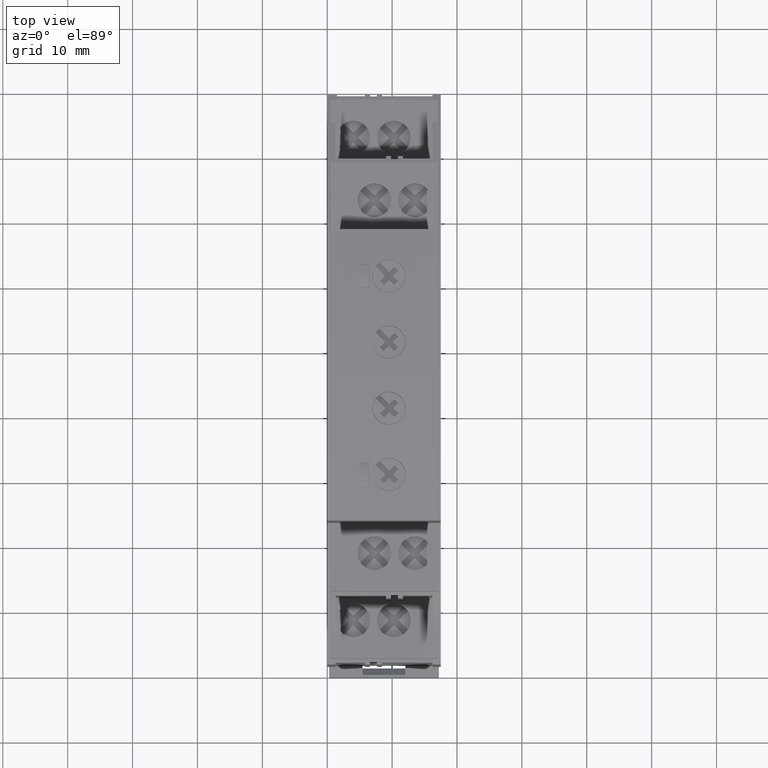
[diagram: clean part render]
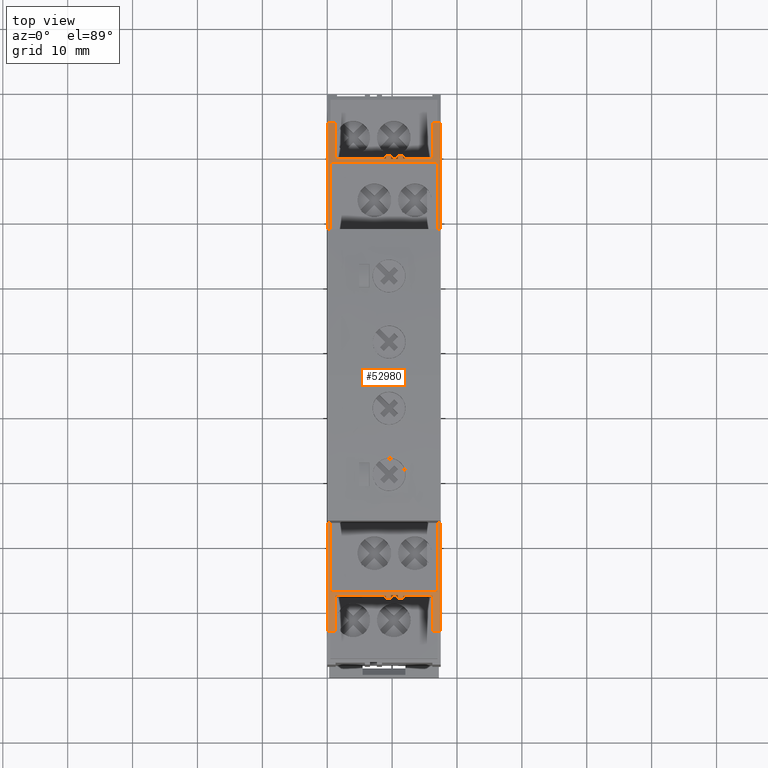
[diagram: same view with one face highlighted and labeled with its STEP entity id]
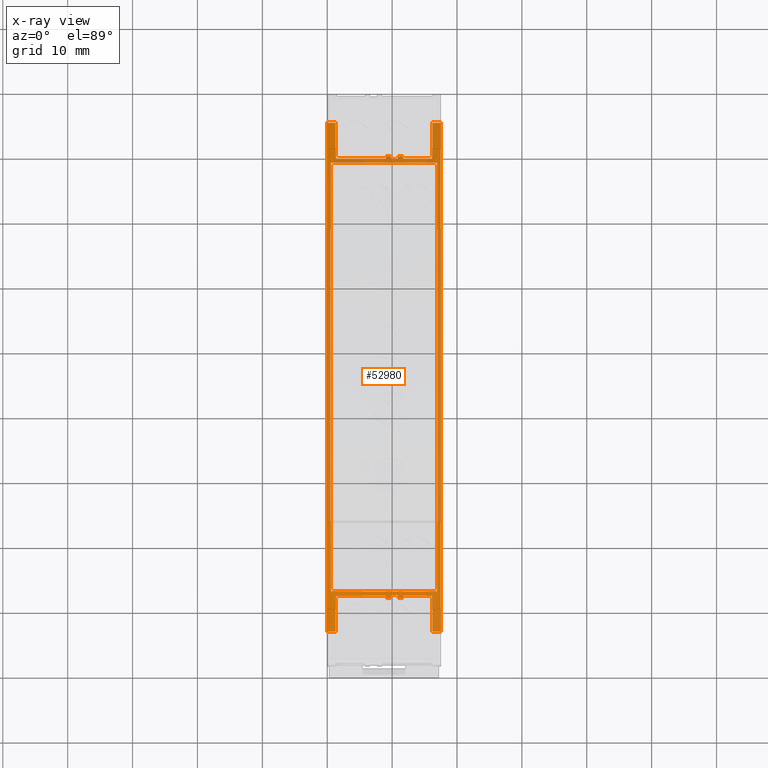
[diagram: x-ray of the same camera — body ghosted, the highlighted face saturated]
A machine part, top view. The second image highlights one B-rep face of the part: STEP entity #52980.
The next image is the same camera in x-ray: the body ghosted, the highlighted face saturated — about 39% of this face is hidden behind the body in this view.
In plain terms, the highlighted cylindrical surface (partial cylindrical patch) has radius 140 mm, axis along (-1, 0, 0).
Its self-contained STEP definition (entity closure, byte-faithful):
#18110=CARTESIAN_POINT('',(-39.9309419193486,44.0629432922845,17.));
#18120=VERTEX_POINT('',#18110);
#18190=CARTESIAN_POINT('',(-39.9309419432191,44.0629432884404,0.5));
#18200=VERTEX_POINT('',#18190);
#48550=CARTESIAN_POINT('',(5.06898949504747,43.984403660861,0.5));
#48560=VERTEX_POINT('',#48550);
#48630=CARTESIAN_POINT('',(5.0689894945414,43.9844035159015,17.));
#48640=VERTEX_POINT('',#48630);
#49570=CARTESIAN_POINT('',(-50.5042945032395,41.9394862392694,17.));
#49580=VERTEX_POINT('',#49570);
#49610=CARTESIAN_POINT('',(-50.5042945032395,41.9394862392693,
7.105427357601E-15));
#49620=DIRECTION('',(-9.14958382362314E-21,-1.81497429741835E-18,1.));
#49630=VECTOR('',#49620,1.);
#49640=LINE('',#49610,#49630);
#49650=CARTESIAN_POINT('',(-50.5042945032395,41.9394862392694,
0.500000000000004));
#49660=VERTEX_POINT('',#49650);
#49670=EDGE_CURVE('',#49660,#49580,#49640,.T.);
#49970=CARTESIAN_POINT('',(-17.6721459234697,-94.1562521937762,0.5));
#49980=DIRECTION('',(1.35525271563154E-20,1.81496661283925E-18,-1.));
#49990=DIRECTION('',(-0.999998476913288,0.00174532836589861,
-1.03847938020941E-20));
#50000=AXIS2_PLACEMENT_3D('',#49970,#49980,#49990);
#50010=CIRCLE('',#50000,140.);
#50020=EDGE_CURVE('',#49660,#18200,#50010,.T.);
#50140=CARTESIAN_POINT('',(-17.6721459234697,-94.1562521937762,0.5));
#50150=DIRECTION('',(1.35525271563154E-20,1.81496661283925E-18,-1.));
#50160=DIRECTION('',(-0.999998476913288,0.00174532836589861,
-1.13996274479003E-20));
#50170=AXIS2_PLACEMENT_3D('',#50140,#50150,#50160);
#50180=CYLINDRICAL_SURFACE('',#50170,140.);
#50190=CARTESIAN_POINT('',(-17.6721459234697,-94.1562521937762,0.5));
#50200=DIRECTION('',(1.35525271563154E-20,1.81496661283925E-18,-1.));
#50210=DIRECTION('',(-0.999998476913288,0.00174532836589861,
-1.03847938020941E-20));
#50220=AXIS2_PLACEMENT_3D('',#50190,#50200,#50210);
#50230=CIRCLE('',#50220,140.);
#50240=CARTESIAN_POINT('',(15.6348654135829,41.8240515115526,0.5));
#50250=VERTEX_POINT('',#50240);
#50260=EDGE_CURVE('',#48560,#50250,#50230,.T.);
#50270=ORIENTED_EDGE('',*,*,#50260,.T.);
#50280=EDGE_CURVE('',#18200,#48560,#50010,.T.);
#50290=ORIENTED_EDGE('',*,*,#50280,.T.);
#50300=ORIENTED_EDGE('',*,*,#50020,.T.);
#50310=ORIENTED_EDGE('',*,*,#49670,.F.);
#50320=CARTESIAN_POINT('',(-17.6721459234697,-94.1562521937762,17.));
#50330=DIRECTION('',(1.35525271563154E-20,1.81496661283925E-18,-1.));
#50340=DIRECTION('',(-0.999998476913288,0.00174532836589861,
-1.03847938020941E-20));
#50350=AXIS2_PLACEMENT_3D('',#50320,#50330,#50340);
#50360=CIRCLE('',#50350,140.);
#50370=EDGE_CURVE('',#49580,#18120,#50360,.T.);
#50380=ORIENTED_EDGE('',*,*,#50370,.F.);
#50390=EDGE_CURVE('',#18120,#48640,#50360,.T.);
#50400=ORIENTED_EDGE('',*,*,#50390,.F.);
#50410=CARTESIAN_POINT('',(-17.6721459234697,-94.1562521937762,17.));
#50420=DIRECTION('',(-1.35525271563154E-20,-1.81496661283925E-18,1.));
#50430=DIRECTION('',(-0.999998476913288,0.00174532836589861,
-1.13996274479003E-20));
#50440=AXIS2_PLACEMENT_3D('',#50410,#50420,#50430);
#50450=CIRCLE('',#50440,140.);
#50460=CARTESIAN_POINT('',(15.6348654135828,41.8240515115527,17.));
#50470=VERTEX_POINT('',#50460);
#50480=EDGE_CURVE('',#50470,#48640,#50450,.T.);
#50490=ORIENTED_EDGE('',*,*,#50480,.T.);
#50500=CARTESIAN_POINT('',(15.6348654135829,41.8240515115526,
0.500000000000007));
#50510=DIRECTION('',(-1.25377387118693E-20,-1.81497024707909E-18,1.));
#50520=VECTOR('',#50510,1.);
#50530=LINE('',#50500,#50520);
#50540=EDGE_CURVE('',#50250,#50470,#50530,.T.);
#50550=ORIENTED_EDGE('',*,*,#50540,.T.);
#50560=EDGE_LOOP('',(#50550,#50490,#50400,#50380,#50310,#50300,#50290,
#50270));
#50570=FACE_BOUND('',#50560,.T.);
#50580=CARTESIAN_POINT('',(-17.6721459234697,-94.1562521937762,17.5));
#50590=DIRECTION('',(-1.35525271563154E-20,-1.81496661283925E-18,1.));
#50600=DIRECTION('',(-0.999998476913288,0.00174532836589861,
-1.03847938020941E-20));
#50610=AXIS2_PLACEMENT_3D('',#50580,#50590,#50600);
#50620=CIRCLE('',#50610,140.);
#50630=CARTESIAN_POINT('',(21.7897716862872,40.1670780901353,17.5));
#50640=VERTEX_POINT('',#50630);
#50650=CARTESIAN_POINT('',(-56.664947194767,40.3040075449925,17.5));
#50660=VERTEX_POINT('',#50650);
#50670=EDGE_CURVE('',#50640,#50660,#50620,.T.);
#50680=ORIENTED_EDGE('',*,*,#50670,.F.);
#50690=CARTESIAN_POINT('',(-56.664947194767,40.3040075449926,0.5));
#50700=DIRECTION('',(1.35525271563154E-20,1.81496661283925E-18,-1.));
#50710=VECTOR('',#50700,1.);
#50720=LINE('',#50690,#50710);
#50730=CARTESIAN_POINT('',(-56.664947194767,40.3040075449925,
16.2000000000001));
#50740=VERTEX_POINT('',#50730);
#50750=EDGE_CURVE('',#50660,#50740,#50720,.T.);
#50760=ORIENTED_EDGE('',*,*,#50750,.F.);
#50770=CARTESIAN_POINT('',(-17.6721459234698,-94.1562521937761,16.2));
#50780=DIRECTION('',(1.35525271563154E-20,1.81496661283925E-18,-1.));
#50790=DIRECTION('',(0.999998476913288,-0.00174532836593105,
1.03847938020352E-20));
#50800=AXIS2_PLACEMENT_3D('',#50770,#50780,#50790);
#50810=CIRCLE('',#50800,140.);
#50820=CARTESIAN_POINT('',(-51.1075022153462,41.7925504844207,16.2));
#50830=VERTEX_POINT('',#50820);
#50840=EDGE_CURVE('',#50740,#50830,#50810,.T.);
#50850=ORIENTED_EDGE('',*,*,#50840,.F.);
#50860=CARTESIAN_POINT('',(-51.1075022153462,41.7925504844207,0.5));
#50870=DIRECTION('',(1.35525271563154E-20,1.81496661283925E-18,-1.));
#50880=VECTOR('',#50870,1.);
#50890=LINE('',#50860,#50880);
#50900=CARTESIAN_POINT('',(-51.1075022153461,41.7925504844206,
11.6999999999999));
#50910=VERTEX_POINT('',#50900);
#50920=EDGE_CURVE('',#50830,#50910,#50890,.T.);
#50930=ORIENTED_EDGE('',*,*,#50920,.F.);
#50940=CARTESIAN_POINT('',(-17.6721459234698,-94.1562521937761,
11.6999999999999));
#50950=DIRECTION('',(1.35525271563154E-20,1.81496661283925E-18,-1.));
#50960=DIRECTION('',(0.999998476913288,-0.00174532836593105,
1.03847938020352E-20));
#50970=AXIS2_PLACEMENT_3D('',#50940,#50950,#50960);
#50980=CIRCLE('',#50970,140.);
#50990=CARTESIAN_POINT('',(-51.5078505345909,41.6934629088657,
11.6999999999999));
#51000=VERTEX_POINT('',#50990);
#51010=EDGE_CURVE('',#51000,#50910,#50980,.T.);
#51020=ORIENTED_EDGE('',*,*,#51010,.T.);
#51030=CARTESIAN_POINT('',(-51.507850534591,41.6934629088658,0.5));
#51040=DIRECTION('',(1.35525271563154E-20,1.81496661283925E-18,-1.));
#51050=VECTOR('',#51040,1.);
#51060=LINE('',#51030,#51050);
#51070=CARTESIAN_POINT('',(-51.507850534591,41.6934629088657,10.9));
#51080=VERTEX_POINT('',#51070);
#51090=EDGE_CURVE('',#51000,#51080,#51060,.T.);
#51100=ORIENTED_EDGE('',*,*,#51090,.F.);
#51110=CARTESIAN_POINT('',(-17.6721459234698,-94.1562521937761,
10.8999999999999));
#51120=DIRECTION('',(1.35525271563154E-20,1.81496661283925E-18,-1.));
#51130=DIRECTION('',(0.999998476913288,-0.00174532836593105,
1.03847938020352E-20));
#51140=AXIS2_PLACEMENT_3D('',#51110,#51120,#51130);
#51150=CIRCLE('',#51140,140.);
#51160=CARTESIAN_POINT('',(-51.0682558279918,41.8021967648857,
10.8999999999999));
#51170=VERTEX_POINT('',#51160);
#51180=EDGE_CURVE('',#51080,#51170,#51150,.T.);
#51190=ORIENTED_EDGE('',*,*,#51180,.F.);
#51200=CARTESIAN_POINT('',(-51.0682558279919,41.8021967648859,0.5));
#51210=DIRECTION('',(1.35525271563154E-20,1.81496661283925E-18,-1.));
#51220=VECTOR('',#51210,1.);
#51230=LINE('',#51200,#51220);
#51240=CARTESIAN_POINT('',(-51.0682558279918,41.8021967648857,
9.84999999999987));
#51250=VERTEX_POINT('',#51240);
#51260=EDGE_CURVE('',#51170,#51250,#51230,.T.);
#51270=ORIENTED_EDGE('',*,*,#51260,.F.);
#51280=CARTESIAN_POINT('',(-17.6721459234698,-94.1562521937761,
9.84999999999987));
#51290=DIRECTION('',(1.35525271563154E-20,1.81496661283925E-18,-1.));
#51300=DIRECTION('',(0.999998476913288,-0.00174532836593105,
1.03847938020352E-20));
#51310=AXIS2_PLACEMENT_3D('',#51280,#51290,#51300);
#51320=CIRCLE('',#51310,140.);
#51330=CARTESIAN_POINT('',(-51.507850534591,41.6934629088657,
9.84999999999987));
#51340=VERTEX_POINT('',#51330);
#51350=EDGE_CURVE('',#51340,#51250,#51320,.T.);
#51360=ORIENTED_EDGE('',*,*,#51350,.T.);
#51370=CARTESIAN_POINT('',(-51.507850534591,41.6934629088658,0.5));
#51380=DIRECTION('',(1.35525271563154E-20,1.81496661283925E-18,-1.));
#51390=VECTOR('',#51380,1.);
#51400=LINE('',#51370,#51390);
#51410=CARTESIAN_POINT('',(-51.5078505345909,41.6934629088657,
9.04999999999988));
#51420=VERTEX_POINT('',#51410);
#51430=EDGE_CURVE('',#51340,#51420,#51400,.T.);
#51440=ORIENTED_EDGE('',*,*,#51430,.F.);
#51450=CARTESIAN_POINT('',(-17.6721459234698,-94.1562521937761,
9.04999999999988));
#51460=DIRECTION('',(1.35525271563154E-20,1.81496661283925E-18,-1.));
#51470=DIRECTION('',(0.999998476913288,-0.00174532836593105,
1.03847938020352E-20));
#51480=AXIS2_PLACEMENT_3D('',#51450,#51460,#51470);
#51490=CIRCLE('',#51480,140.);
#51500=CARTESIAN_POINT('',(-51.1075022153461,41.7925504844206,
9.04999999999988));
#51510=VERTEX_POINT('',#51500);
#51520=EDGE_CURVE('',#51420,#51510,#51490,.T.);
#51530=ORIENTED_EDGE('',*,*,#51520,.F.);
#51540=CARTESIAN_POINT('',(-51.1075022153462,41.7925504844207,0.5));
#51550=DIRECTION('',(1.35525271563154E-20,1.81496661283925E-18,-1.));
#51560=VECTOR('',#51550,1.);
#51570=LINE('',#51540,#51560);
#51580=CARTESIAN_POINT('',(-51.1075022153462,41.7925504844206,
1.29999999999989));
#51590=VERTEX_POINT('',#51580);
#51600=EDGE_CURVE('',#51510,#51590,#51570,.T.);
#51610=ORIENTED_EDGE('',*,*,#51600,.F.);
#51620=CARTESIAN_POINT('',(-17.6721459234698,-94.1562521937761,
1.29999999999989));
#51630=DIRECTION('',(1.35525271563154E-20,1.81496661283925E-18,-1.));
#51640=DIRECTION('',(0.999998476913288,-0.00174532836593105,
1.03847938020352E-20));
#51650=AXIS2_PLACEMENT_3D('',#51620,#51630,#51640);
#51660=CIRCLE('',#51650,140.);
#51670=CARTESIAN_POINT('',(-56.664947194767,40.3040075449924,
1.29999999999989));
#51680=VERTEX_POINT('',#51670);
#51690=EDGE_CURVE('',#51680,#51590,#51660,.T.);
#51700=ORIENTED_EDGE('',*,*,#51690,.T.);
#51710=CARTESIAN_POINT('',(-56.664947194767,40.3040075449926,0.5));
#51720=DIRECTION('',(1.35525271563154E-20,1.81496661283925E-18,-1.));
#51730=VECTOR('',#51720,1.);
#51740=LINE('',#51710,#51730);
#51750=CARTESIAN_POINT('',(-56.664947194767,40.3040075449924,
3.5527136788005E-15));
#51760=VERTEX_POINT('',#51750);
#51770=EDGE_CURVE('',#51680,#51760,#51740,.T.);
#51780=ORIENTED_EDGE('',*,*,#51770,.F.);
#51790=CARTESIAN_POINT('',(-17.6721459234697,-94.1562521937762,0.));
#51800=DIRECTION('',(1.35525271563154E-20,1.81496661283925E-18,-1.));
#51810=DIRECTION('',(-0.999998476913288,0.00174532836589861,
-1.03847938020941E-20));
#51820=AXIS2_PLACEMENT_3D('',#51790,#51800,#51810);
#51830=CIRCLE('',#51820,140.);
#51840=CARTESIAN_POINT('',(21.7897716862871,40.1670780901353,0.));
#51850=VERTEX_POINT('',#51840);
#51860=EDGE_CURVE('',#51760,#51850,#51830,.T.);
#51870=ORIENTED_EDGE('',*,*,#51860,.F.);
#51880=CARTESIAN_POINT('',(21.7897716862871,40.1670780901354,0.5));
#51890=DIRECTION('',(1.35525271563154E-20,1.81496661283925E-18,-1.));
#51900=VECTOR('',#51890,1.);
#51910=LINE('',#51880,#51900);
#51920=CARTESIAN_POINT('',(21.7897716862871,40.1670780901353,
1.29999999999989));
#51930=VERTEX_POINT('',#51920);
#51940=EDGE_CURVE('',#51930,#51850,#51910,.T.);
#51950=ORIENTED_EDGE('',*,*,#51940,.T.);
#51960=CARTESIAN_POINT('',(-17.6721459234697,-94.1562521937762,
1.29999999999989));
#51970=DIRECTION('',(1.69406589453326E-20,1.81495337794935E-18,-1.));
#51980=DIRECTION('',(-0.999998476913288,0.00174532836589861,
-1.37729435299215E-20));
#51990=AXIS2_PLACEMENT_3D('',#51960,#51970,#51980);
#52000=CIRCLE('',#51990,140.);
#52010=CARTESIAN_POINT('',(16.2375565492411,41.6750110640329,
1.29999999999989));
#52020=VERTEX_POINT('',#52010);
#52030=EDGE_CURVE('',#52020,#51930,#52000,.T.);
#52040=ORIENTED_EDGE('',*,*,#52030,.T.);
#52050=CARTESIAN_POINT('',(16.237556549241,41.675011064033,
0.500000000000007));
#52060=DIRECTION('',(1.69406589453326E-20,1.81495337794935E-18,-1.));
#52070=VECTOR('',#52060,1.);
#52080=LINE('',#52050,#52070);
#52090=CARTESIAN_POINT('',(16.2375565492411,41.675011064033,
9.04999999999988));
#52100=VERTEX_POINT('',#52090);
#52110=EDGE_CURVE('',#52100,#52020,#52080,.T.);
#52120=ORIENTED_EDGE('',*,*,#52110,.T.);
#52130=CARTESIAN_POINT('',(-17.6721459234697,-94.1562521937762,
9.04999999999988));
#52140=DIRECTION('',(1.69406589453326E-20,1.81495337794935E-18,-1.));
#52150=DIRECTION('',(-0.999998476913288,0.00174532836589861,
-1.37729435299215E-20));
#52160=AXIS2_PLACEMENT_3D('',#52130,#52140,#52150);
#52170=CIRCLE('',#52160,140.);
#52180=CARTESIAN_POINT('',(16.637556549241,41.5745266157263,
9.04999999999988));
#52190=VERTEX_POINT('',#52180);
#52200=EDGE_CURVE('',#52100,#52190,#52170,.T.);
#52210=ORIENTED_EDGE('',*,*,#52200,.F.);
#52220=CARTESIAN_POINT('',(16.637556549241,41.5745266157263,
0.500000000000007));
#52230=DIRECTION('',(1.69406589453326E-20,1.81495337794935E-18,-1.));
#52240=VECTOR('',#52230,1.);
#52250=LINE('',#52220,#52240);
#52260=CARTESIAN_POINT('',(16.637556549241,41.5745266157262,
9.84999999999987));
#52270=VERTEX_POINT('',#52260);
#52280=EDGE_CURVE('',#52270,#52190,#52250,.T.);
#52290=ORIENTED_EDGE('',*,*,#52280,.T.);
#52300=CARTESIAN_POINT('',(-17.6721459234697,-94.1562521937762,
9.84999999999987));
#52310=DIRECTION('',(1.69406589453326E-20,1.81495337794935E-18,-1.));
#52320=DIRECTION('',(-0.999998476913288,0.00174532836589861,
-1.37729435299215E-20));
#52330=AXIS2_PLACEMENT_3D('',#52300,#52310,#52320);
#52340=CIRCLE('',#52330,140.);
#52350=CARTESIAN_POINT('',(16.1983440727916,41.6847942811872,
9.84999999999987));
#52360=VERTEX_POINT('',#52350);
#52370=EDGE_CURVE('',#52360,#52270,#52340,.T.);
#52380=ORIENTED_EDGE('',*,*,#52370,.T.);
#52390=CARTESIAN_POINT('',(16.1983440727916,41.6847942811873,
0.500000000000007));
#52400=DIRECTION('',(1.69406589453326E-20,1.81495337794935E-18,-1.));
#52410=VECTOR('',#52400,1.);
#52420=LINE('',#52390,#52410);
#52430=CARTESIAN_POINT('',(16.1983440727916,41.6847942811872,
10.8999999999999));
#52440=VERTEX_POINT('',#52430);
#52450=EDGE_CURVE('',#52440,#52360,#52420,.T.);
#52460=ORIENTED_EDGE('',*,*,#52450,.T.);
#52470=CARTESIAN_POINT('',(-17.6721459234697,-94.1562521937762,
10.8999999999999));
#52480=DIRECTION('',(1.69406589453326E-20,1.81495337794935E-18,-1.));
#52490=DIRECTION('',(-0.999998476913288,0.00174532836589861,
-1.37729435299215E-20));
#52500=AXIS2_PLACEMENT_3D('',#52470,#52480,#52490);
#52510=CIRCLE('',#52500,140.);
#52520=CARTESIAN_POINT('',(16.637556549241,41.5745266157262,
10.8999999999999));
#52530=VERTEX_POINT('',#52520);
#52540=EDGE_CURVE('',#52440,#52530,#52510,.T.);
#52550=ORIENTED_EDGE('',*,*,#52540,.F.);
#52560=CARTESIAN_POINT('',(16.637556549241,41.5745266157263,
0.500000000000007));
#52570=DIRECTION('',(1.69406589453326E-20,1.81495337794935E-18,-1.));
#52580=VECTOR('',#52570,1.);
#52590=LINE('',#52560,#52580);
#52600=CARTESIAN_POINT('',(16.6375565492411,41.5745266157262,
11.6999999999999));
#52610=VERTEX_POINT('',#52600);
#52620=EDGE_CURVE('',#52610,#52530,#52590,.T.);
#52630=ORIENTED_EDGE('',*,*,#52620,.T.);
#52640=CARTESIAN_POINT('',(-17.6721459234697,-94.1562521937762,
11.6999999999999));
#52650=DIRECTION('',(1.69406589453326E-20,1.81495337794935E-18,-1.));
#52660=DIRECTION('',(-0.999998476913288,0.00174532836589861,
-1.37729435299215E-20));
#52670=AXIS2_PLACEMENT_3D('',#52640,#52650,#52660);
#52680=CIRCLE('',#52670,140.);
#52690=CARTESIAN_POINT('',(16.2375565492411,41.6750110640329,
11.6999999999999));
#52700=VERTEX_POINT('',#52690);
#52710=EDGE_CURVE('',#52700,#52610,#52680,.T.);
#52720=ORIENTED_EDGE('',*,*,#52710,.T.);
#52730=CARTESIAN_POINT('',(16.237556549241,41.675011064033,
0.500000000000007));
#52740=DIRECTION('',(1.69406589453326E-20,1.81495337794935E-18,-1.));
#52750=VECTOR('',#52740,1.);
#52760=LINE('',#52730,#52750);
#52770=CARTESIAN_POINT('',(16.2375565492411,41.675011064033,16.2));
#52780=VERTEX_POINT('',#52770);
#52790=EDGE_CURVE('',#52780,#52700,#52760,.T.);
#52800=ORIENTED_EDGE('',*,*,#52790,.T.);
#52810=CARTESIAN_POINT('',(-17.6721459234697,-94.1562521937762,16.2));
#52820=DIRECTION('',(1.69406589453326E-20,1.81495337794935E-18,-1.));
#52830=DIRECTION('',(-0.999998476913288,0.00174532836589861,
-1.37729435299215E-20));
#52840=AXIS2_PLACEMENT_3D('',#52810,#52820,#52830);
#52850=CIRCLE('',#52840,140.);
#52860=CARTESIAN_POINT('',(21.7897716862871,40.1670780901353,16.2));
#52870=VERTEX_POINT('',#52860);
#52880=EDGE_CURVE('',#52780,#52870,#52850,.T.);
#52890=ORIENTED_EDGE('',*,*,#52880,.F.);
#52900=CARTESIAN_POINT('',(21.7897716862872,40.1670780901353,0.));
#52910=DIRECTION('',(-1.51119935225708E-16,1.13006596757757E-16,-1.));
#52920=VECTOR('',#52910,1.);
#52930=LINE('',#52900,#52920);
#52940=EDGE_CURVE('',#50640,#52870,#52930,.T.);
#52950=ORIENTED_EDGE('',*,*,#52940,.T.);
#52960=EDGE_LOOP('',(#52950,#52890,#52800,#52720,#52630,#52550,#52460,
#52380,#52290,#52210,#52120,#52040,#51950,#51870,#51780,#51700,#51610,
#51530,#51440,#51360,#51270,#51190,#51100,#51020,#50930,#50850,#50760,
#50680));
#52970=FACE_OUTER_BOUND('',#52960,.T.);
#52980=ADVANCED_FACE('',(#50570,#52970),#50180,.T.);